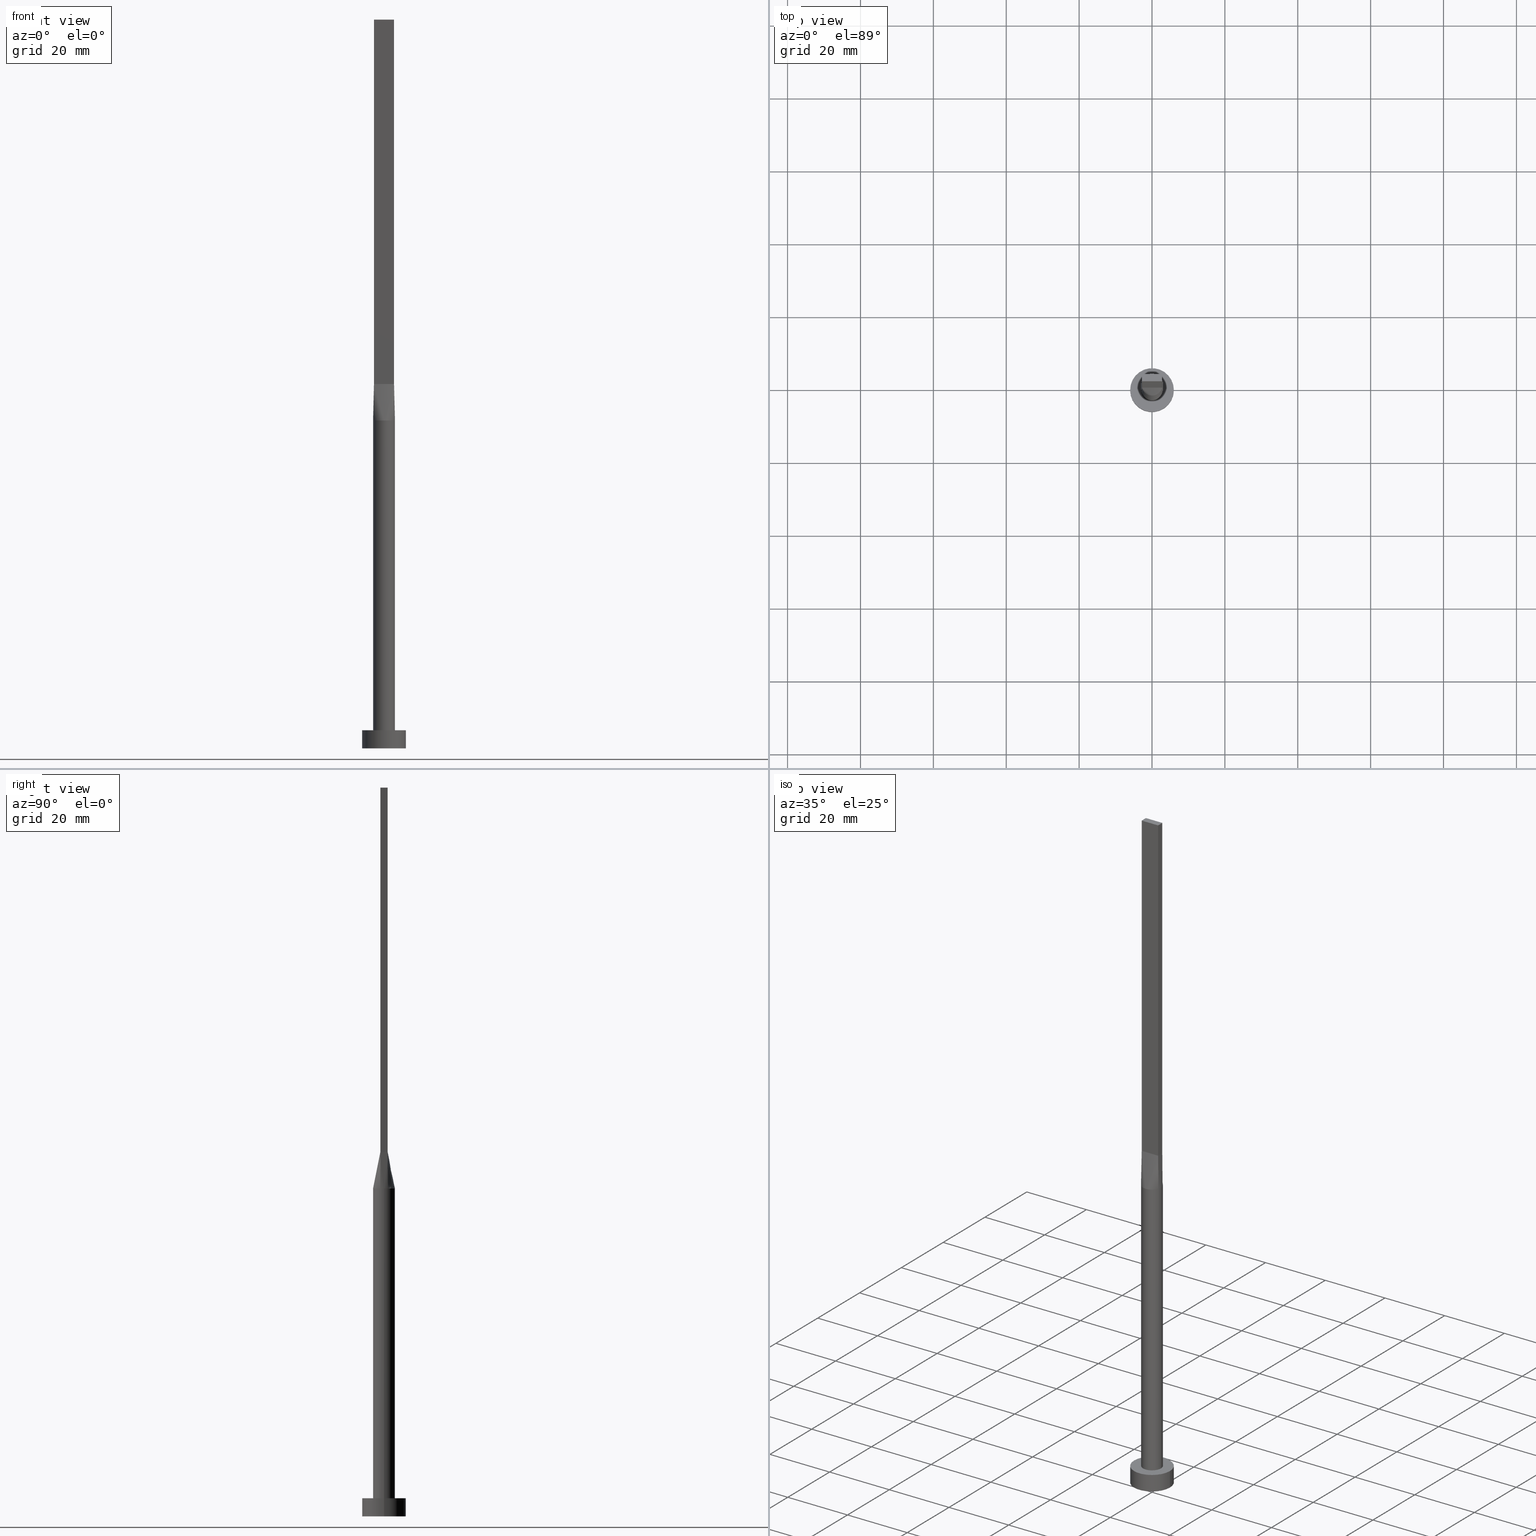
[diagram: canonical four-view strip — front | top / right | iso, engineering-drawing reading convention]
A machine part, canonical four-view strip (front | top / right | iso — engineering-drawing reading convention). The complete STEP part file that produces these views, byte-faithful:
ISO-10303-21;
HEADER;
FILE_DESCRIPTION (( 'STEP AP203' ),
    '1' );
FILE_NAME ('730e.STEP',
    '2023-02-13T10:48:29',
    ( '' ),
    ( '' ),
    'SwSTEP 2.0',
    'SolidWorks 2019',
    '' );
FILE_SCHEMA (( 'CONFIG_CONTROL_DESIGN' ));
ENDSEC;

DATA;
#1 = DIRECTION ( 'NONE',  ( 0.006937837988376413349, -0.002522850177591350138, 0.9999727504442450510 ) ) ;
#2 = CARTESIAN_POINT ( 'NONE',  ( -2.749999999999999556, 0.6666666666666668517, 100.0000000000000000 ) ) ;
#3 = EDGE_CURVE ( 'NONE', #349, #217, #318, .T. ) ;
#4 = CYLINDRICAL_SURFACE ( 'NONE', #550, 3.000000000000000444 ) ;
#5 = VERTEX_POINT ( 'NONE', #452 ) ;
#6 = CARTESIAN_POINT ( 'NONE',  ( -2.750000000000000000, -0.9999999999999993339, 200.0000000000000000 ) ) ;
#7 = ORIENTED_EDGE ( 'NONE', *, *, #246, .T. ) ;
#8 = DIRECTION ( 'NONE',  ( -0.006937837988376369981, 0.002522850177591328454, 0.9999727504442450510 ) ) ;
#9 = EDGE_CURVE ( 'NONE', #477, #407, #185, .T. ) ;
#10 = DIRECTION ( 'NONE',  ( -0.000000000000000000, -0.000000000000000000, -1.000000000000000000 ) ) ;
#11 = DIRECTION ( 'NONE',  ( 1.000000000000000000, 0.000000000000000000, 0.000000000000000000 ) ) ;
#12 = ORIENTED_EDGE ( 'NONE', *, *, #190, .T. ) ;
#13 = DIRECTION ( 'NONE',  ( -0.006937837988376369981, -0.002522850177591328454, -0.9999727504442450510 ) ) ;
#14 = CARTESIAN_POINT ( 'NONE',  ( 0.3502136323054372835, -3.000000000000000444, 90.00000000000001421 ) ) ;
#15 = PLANE ( 'NONE',  #500 ) ;
#16 = CARTESIAN_POINT ( 'NONE',  ( -2.750000000000000000, -0.6666666666666658525, 100.0000000000000000 ) ) ;
#17 = EDGE_CURVE ( 'NONE', #87, #202, #43, .T. ) ;
#18 = CARTESIAN_POINT ( 'NONE',  ( 2.314486317179579533, -1.928337902455807606, 90.00000000000002842 ) ) ;
#19 = FACE_OUTER_BOUND ( 'NONE', #534, .T. ) ;
#20 = AXIS2_PLACEMENT_3D ( 'NONE', #541, #403, #267 ) ;
#21 = APPROVAL_PERSON_ORGANIZATION ( #293, #104, #69 ) ;
#22 = CIRCLE ( 'NONE', #347, 3.000000000000000444 ) ;
#23 = CARTESIAN_POINT ( 'NONE',  ( -2.750000000000000000, -0.9999999999999991118, 100.0000000000000000 ) ) ;
#24 = PERSON_AND_ORGANIZATION_ROLE ( 'design_owner' ) ;
#25 = EDGE_CURVE ( 'NONE', #544, #258, #183, .T. ) ;
#26 = LINE ( 'NONE', #524, #389 ) ;
#27 = PRODUCT ( '730e', '730e', '', ( #203 ) ) ;
#28 = ORIENTED_EDGE ( 'NONE', *, *, #53, .T. ) ;
#29 = DATE_AND_TIME ( #468, #281 ) ;
#30 = CARTESIAN_POINT ( 'NONE',  ( -0.9166666666666644092, 1.000000000000000000, 100.0000000000000000 ) ) ;
#31 = EDGE_LOOP ( 'NONE', ( #454, #387, #487, #539 ) ) ;
#32 = CARTESIAN_POINT ( 'NONE',  ( -1.627925520694712747, 2.539128397820341831, 90.00000000000000000 ) ) ;
#33 = ORIENTED_EDGE ( 'NONE', *, *, #255, .F. ) ;
#34 = EDGE_CURVE ( 'NONE', #217, #349, #52, .T. ) ;
#35 = APPROVAL_DATE_TIME ( #162, #456 ) ;
#36 = CARTESIAN_POINT ( 'NONE',  ( -1.338960936578149408, 2.706038443291637119, 90.00000000000000000 ) ) ;
#37 = EDGE_LOOP ( 'NONE', ( #575, #210, #360, #432 ) ) ;
#38 = CARTESIAN_POINT ( 'NONE',  ( 2.314486317179579977, 1.928337902455807384, 90.00000000000002842 ) ) ;
#39 = ORIENTED_EDGE ( 'NONE', *, *, #333, .F. ) ;
#40 = CARTESIAN_POINT ( 'NONE',  ( 0.000000000000000000, 0.000000000000000000, 5.000000000000000000 ) ) ;
#41 =( GEOMETRIC_REPRESENTATION_CONTEXT ( 3 ) GLOBAL_UNCERTAINTY_ASSIGNED_CONTEXT ( ( #449 ) ) GLOBAL_UNIT_ASSIGNED_CONTEXT ( ( #406, #181, #554 ) ) REPRESENTATION_CONTEXT ( 'NONE', 'WORKASPACE' ) );
#42 = ORIENTED_EDGE ( 'NONE', *, *, #9, .T. ) ;
#43 = CIRCLE ( 'NONE', #70, 3.000000000000000444 ) ;
#44 = EDGE_CURVE ( 'NONE', #423, #552, #139, .T. ) ;
#45 = CARTESIAN_POINT ( 'NONE',  ( 2.750000000000000000, -0.9999999999999997780, 200.0000000000000000 ) ) ;
#46 = DIRECTION ( 'NONE',  ( -0.000000000000000000, -0.000000000000000000, -1.000000000000000000 ) ) ;
#47 = CARTESIAN_POINT ( 'NONE',  ( 0.000000000000000000, 0.000000000000000000, 90.00000000000001421 ) ) ;
#48 = ORIENTED_EDGE ( 'NONE', *, *, #530, .F. ) ;
#49 = CARTESIAN_POINT ( 'NONE',  ( 2.749999999999999556, 1.000000000000000000, 200.0000000000000000 ) ) ;
#50 = ORIENTED_EDGE ( 'NONE', *, *, #17, .F. ) ;
#51 = ORIENTED_EDGE ( 'NONE', *, *, #297, .T. ) ;
#52 = CIRCLE ( 'NONE', #363, 6.000000000000000888 ) ;
#53 = EDGE_CURVE ( 'NONE', #578, #266, #576, .T. ) ;
#54 = CARTESIAN_POINT ( 'NONE',  ( -2.749999999999999556, 1.000000000000000000, 100.0000000000000000 ) ) ;
#55 = CARTESIAN_POINT ( 'NONE',  ( 3.000000000000000444, 3.673940397442060361E-16, 5.000000000000000000 ) ) ;
#56 = CARTESIAN_POINT ( 'NONE',  ( 1.604166666666666741, -0.9999999999999995559, 100.0000000000000000 ) ) ;
#57 = ORIENTED_EDGE ( 'NONE', *, *, #411, .T. ) ;
#58 = CARTESIAN_POINT ( 'NONE',  ( -2.749999999999999556, 1.000000000000000000, 100.0000000000000000 ) ) ;
#59 = PLANE ( 'NONE',  #156 ) ;
#60 = CARTESIAN_POINT ( 'NONE',  ( 0.4583333333333332593, -0.9999999999999995559, 100.0000000000000000 ) ) ;
#61 = EDGE_CURVE ( 'NONE', #258, #5, #261, .T. ) ;
#62 = CARTESIAN_POINT ( 'NONE',  ( 0.000000000000000000, 0.000000000000000000, 90.00000000000001421 ) ) ;
#63 = CARTESIAN_POINT ( 'NONE',  ( -2.314486317179578645, -1.928337902455806496, 90.00000000000001421 ) ) ;
#64 = FACE_OUTER_BOUND ( 'NONE', #445, .T. ) ;
#65 = FACE_OUTER_BOUND ( 'NONE', #343, .T. ) ;
#66 = CARTESIAN_POINT ( 'NONE',  ( 0.000000000000000000, 0.000000000000000000, 0.000000000000000000 ) ) ;
#67 = VECTOR ( 'NONE', #338, 1000.000000000000000 ) ;
#68 = ADVANCED_FACE ( 'NONE', ( #438 ), #394, .T. ) ;
#69 = APPROVAL_ROLE ( '' ) ;
#70 = AXIS2_PLACEMENT_3D ( 'NONE', #225, #357, #496 ) ;
#71 = LINE ( 'NONE', #244, #67 ) ;
#72 = CALENDAR_DATE ( 2023, 13, 2 ) ;
#73 = DIRECTION ( 'NONE',  ( -0.006937837988376413349, -0.002522850177591328454, 0.9999727504442450510 ) ) ;
#74 = B_SPLINE_SURFACE_WITH_KNOTS ( 'NONE', 3, 1, ( 
 ( #410, #556 ),
 ( #100, #510 ),
 ( #418, #559 ),
 ( #63, #230 ),
 ( #283, #239 ),
 ( #322, #414 ),
 ( #105, #280 ),
 ( #109, #329 ),
 ( #460, #107 ),
 ( #14, #365 ),
 ( #319, #60 ),
 ( #237, #179 ),
 ( #325, #186 ),
 ( #502, #56 ),
 ( #18, #278 ),
 ( #457, #148 ),
 ( #361, #276 ),
 ( #191, #146 ) ),
 .UNSPECIFIED., .F., .F., .F.,
 ( 4, 2, 2, 2, 2, 2, 2, 2, 4 ),
 ( 2, 2 ),
 ( 0.000000000000000000, 0.1250000000000000000, 0.2500000000000000000, 0.3750000000000000000, 0.5000000000000000000, 0.6250000000000000000, 0.7500000000000000000, 0.8750000000000000000, 1.000000000000000000 ),
 ( 0.000000000000000000, 1.000000000000000000 ),
 .UNSPECIFIED. ) ;
#75 = ORIENTED_EDGE ( 'NONE', *, *, #333, .T. ) ;
#76 = PERSON_AND_ORGANIZATION ( #440, #491 ) ;
#77 = CARTESIAN_POINT ( 'NONE',  ( 2.819380270465311700, 1.025229189260113083, 90.00000000000001421 ) ) ;
#78 = EDGE_LOOP ( 'NONE', ( #168, #228, #323, #39 ) ) ;
#79 = CC_DESIGN_APPROVAL ( #367, ( #428 ) ) ;
#80 = COORDINATED_UNIVERSAL_TIME_OFFSET ( 1, 0, .AHEAD. ) ;
#81 = LINE ( 'NONE', #335, #308 ) ;
#82 = ORIENTED_EDGE ( 'NONE', *, *, #44, .F. ) ;
#83 = CARTESIAN_POINT ( 'NONE',  ( 2.749999999999999556, 1.000000000000000000, 200.0000000000000000 ) ) ;
#84 = ORIENTED_EDGE ( 'NONE', *, *, #275, .T. ) ;
#85 = APPLICATION_CONTEXT ( 'configuration controlled 3d designs of mechanical parts and assemblies' ) ;
#86 = CYLINDRICAL_SURFACE ( 'NONE', #193, 6.000000000000000888 ) ;
#87 = VERTEX_POINT ( 'NONE', #55 ) ;
#88 = EDGE_CURVE ( 'NONE', #202, #87, #439, .T. ) ;
#89 = CARTESIAN_POINT ( 'NONE',  ( -2.749999999999999556, 1.000000000000000000, 200.0000000000000000 ) ) ;
#90 = FACE_OUTER_BOUND ( 'NONE', #251, .T. ) ;
#91 = DIRECTION ( 'NONE',  ( -1.000000000000000000, 0.000000000000000000, 0.000000000000000000 ) ) ;
#92 = DIRECTION ( 'NONE',  ( 1.000000000000000000, 0.000000000000000000, 0.000000000000000000 ) ) ;
#93 = CARTESIAN_POINT ( 'NONE',  ( 0.000000000000000000, 0.000000000000000000, 5.000000000000000000 ) ) ;
#94 = EDGE_CURVE ( 'NONE', #266, #349, #536, .T. ) ;
#95 = DIRECTION ( 'NONE',  ( 1.000000000000000000, 0.000000000000000000, 0.000000000000000000 ) ) ;
#96 = CARTESIAN_POINT ( 'NONE',  ( 3.000000000000000444, 7.514166843208536743E-18, 90.00000000000001421 ) ) ;
#97 = AXIS2_PLACEMENT_3D ( 'NONE', #144, #412, #195 ) ;
#98 = CARTESIAN_POINT ( 'NONE',  ( 0.000000000000000000, 0.000000000000000000, 5.000000000000000000 ) ) ;
#99 = AXIS2_PLACEMENT_3D ( 'NONE', #98, #46, #321 ) ;
#100 = CARTESIAN_POINT ( 'NONE',  ( -2.739088299662391979, -1.246032108968140983, 89.99999999999998579 ) ) ;
#101 = CARTESIAN_POINT ( 'NONE',  ( 2.750000000000000000, -1.000000000000000000, 100.0000000000000000 ) ) ;
#102 = ORIENTED_EDGE ( 'NONE', *, *, #61, .F. ) ;
#103 = CARTESIAN_POINT ( 'NONE',  ( -2.749999999999999556, 1.000000000000000000, 200.0000000000000000 ) ) ;
#104 = APPROVAL ( #421, 'NEUR�EN�' ) ;
#105 = CARTESIAN_POINT ( 'NONE',  ( -1.338960936578150518, -2.706038443291638007, 90.00000000000001421 ) ) ;
#106 = DIRECTION ( 'NONE',  ( 1.000000000000000000, -7.885106708985487801E-17, 0.000000000000000000 ) ) ;
#107 = CARTESIAN_POINT ( 'NONE',  ( -0.2291666666666667684, -0.9999999999999995559, 100.0000000000000142 ) ) ;
#108 = LINE ( 'NONE', #147, #520 ) ;
#109 = CARTESIAN_POINT ( 'NONE',  ( -0.6998073349918614294, -2.936959335800558346, 90.00000000000001421 ) ) ;
#110 = DIRECTION ( 'NONE',  ( 1.000000000000000000, 0.000000000000000000, -0.000000000000000000 ) ) ;
#111 = ADVANCED_FACE ( 'NONE', ( #581 ), #260, .F. ) ;
#112 = CALENDAR_DATE ( 2023, 13, 2 ) ;
#113 = CARTESIAN_POINT ( 'NONE',  ( 2.314486317179579977, 1.928337902455807384, 90.00000000000002842 ) ) ;
#114 = CIRCLE ( 'NONE', #391, 6.000000000000000888 ) ;
#115 = PERSON_AND_ORGANIZATION_ROLE ( 'classification_officer' ) ;
#116 = VECTOR ( 'NONE', #8, 1000.000000000000114 ) ;
#117 = CARTESIAN_POINT ( 'NONE',  ( -2.115507543051069916, 2.149870311632977593, 90.00000000000001421 ) ) ;
#118 = CARTESIAN_POINT ( 'NONE',  ( 2.115507543051069916, 2.149870311632976705, 90.00000000000001421 ) ) ;
#119 = ORIENTED_EDGE ( 'NONE', *, *, #17, .T. ) ;
#120 = DIRECTION ( 'NONE',  ( 1.000000000000000000, 0.000000000000000000, 0.000000000000000000 ) ) ;
#121 = ADVANCED_FACE ( 'NONE', ( #90 ), #485, .T. ) ;
#122 = CARTESIAN_POINT ( 'NONE',  ( 0.2291666666666679342, 1.000000000000000000, 100.0000000000000142 ) ) ;
#123 = ORIENTED_EDGE ( 'NONE', *, *, #255, .T. ) ;
#124 = VECTOR ( 'NONE', #279, 1000.000000000000000 ) ;
#125 = CARTESIAN_POINT ( 'NONE',  ( -2.115507543051069916, 2.149870311632977593, 90.00000000000001421 ) ) ;
#126 = ORIENTED_EDGE ( 'NONE', *, *, #297, .F. ) ;
#127 = DIRECTION ( 'NONE',  ( -0.000000000000000000, -0.000000000000000000, -1.000000000000000000 ) ) ;
#128 = ORIENTED_EDGE ( 'NONE', *, *, #464, .T. ) ;
#129 = ADVANCED_FACE ( 'NONE', ( #326 ), #59, .F. ) ;
#130 = CARTESIAN_POINT ( 'NONE',  ( -2.314486317179579977, 1.928337902455808051, 90.00000000000001421 ) ) ;
#131 = DIRECTION ( 'NONE',  ( 2.168404344971010101E-16, 1.000000000000000000, 0.000000000000000000 ) ) ;
#132 = CARTESIAN_POINT ( 'NONE',  ( 2.749999999999999556, 1.000000000000000000, 200.0000000000000000 ) ) ;
#133 = CARTESIAN_POINT ( 'NONE',  ( -6.000000000000000888, 0.000000000000000000, 5.000000000000000000 ) ) ;
#134 = MANIFOLD_SOLID_BREP ( 'P�idat vysunut�m5', #579 ) ;
#135 = ADVANCED_FACE ( 'NONE', ( #562 ), #508, .F. ) ;
#136 = LINE ( 'NONE', #45, #467 ) ;
#137 = ORIENTED_EDGE ( 'NONE', *, *, #201, .F. ) ;
#138 = CARTESIAN_POINT ( 'NONE',  ( 3.000000000000000444, 3.673940397442060361E-16, 90.00000000000001421 ) ) ;
#139 = LINE ( 'NONE', #448, #116 ) ;
#140 = CARTESIAN_POINT ( 'NONE',  ( -2.819429393986302657, 1.025247261300842760, 90.00000000000001421 ) ) ;
#141 = VECTOR ( 'NONE', #219, 1000.000000000000000 ) ;
#142 = CARTESIAN_POINT ( 'NONE',  ( 0.000000000000000000, 0.000000000000000000, 90.00000000000001421 ) ) ;
#143 = ORIENTED_EDGE ( 'NONE', *, *, #416, .F. ) ;
#144 = CARTESIAN_POINT ( 'NONE',  ( 0.000000000000000000, 0.000000000000000000, 90.00000000000001421 ) ) ;
#145 = ADVANCED_FACE ( 'NONE', ( #19 ), #277, .F. ) ;
#146 = CARTESIAN_POINT ( 'NONE',  ( 2.750000000000000000, -0.9999999999999997780, 100.0000000000000000 ) ) ;
#147 = CARTESIAN_POINT ( 'NONE',  ( -2.784690135232656072, -1.012614594630055764, 95.00000000000000000 ) ) ;
#148 = CARTESIAN_POINT ( 'NONE',  ( 2.291666666666666519, -0.9999999999999995559, 100.0000000000000000 ) ) ;
#149 = LINE ( 'NONE', #103, #124 ) ;
#150 = EDGE_CURVE ( 'NONE', #346, #571, #413, .T. ) ;
#151 = FACE_OUTER_BOUND ( 'NONE', #222, .T. ) ;
#152 = DIRECTION ( 'NONE',  ( 0.000000000000000000, -1.000000000000000000, 0.000000000000000000 ) ) ;
#153 = PERSON_AND_ORGANIZATION ( #440, #491 ) ;
#154 = CARTESIAN_POINT ( 'NONE',  ( 2.291666666666666963, 1.000000000000000000, 100.0000000000000000 ) ) ;
#155 = ORIENTED_EDGE ( 'NONE', *, *, #150, .T. ) ;
#156 = AXIS2_PLACEMENT_3D ( 'NONE', #66, #240, #110 ) ;
#157 = PERSON_AND_ORGANIZATION ( #440, #491 ) ;
#158 = CARTESIAN_POINT ( 'NONE',  ( 1.338960936578149630, 2.706038443291637563, 90.00000000000000000 ) ) ;
#159 = ORIENTED_EDGE ( 'NONE', *, *, #522, .T. ) ;
#160 = DIRECTION ( 'NONE',  ( 0.000000000000000000, 0.000000000000000000, 1.000000000000000000 ) ) ;
#161 = ORIENTED_EDGE ( 'NONE', *, *, #275, .F. ) ;
#162 = DATE_AND_TIME ( #112, #232 ) ;
#163 = DIRECTION ( 'NONE',  ( -0.000000000000000000, -0.000000000000000000, -1.000000000000000000 ) ) ;
#164 = VECTOR ( 'NONE', #106, 1000.000000000000000 ) ;
#165 = AXIS2_PLACEMENT_3D ( 'NONE', #442, #180, #499 ) ;
#166 = ADVANCED_FACE ( 'NONE', ( #64 ), #287, .T. ) ;
#167 = CARTESIAN_POINT ( 'NONE',  ( 1.833333333333334370, 1.000000000000000000, 100.0000000000000000 ) ) ;
#168 = ORIENTED_EDGE ( 'NONE', *, *, #309, .T. ) ;
#169 = DIRECTION ( 'NONE',  ( 1.000000000000000000, 0.000000000000000000, -0.000000000000000000 ) ) ;
#170 = DIRECTION ( 'NONE',  ( 1.000000000000000000, -2.168404344971010101E-16, 0.000000000000000000 ) ) ;
#171 = DIRECTION ( 'NONE',  ( 0.000000000000000000, 0.000000000000000000, 1.000000000000000000 ) ) ;
#172 = CARTESIAN_POINT ( 'NONE',  ( -3.000000000000000444, 0.3523499553598127276, 90.00000000000001421 ) ) ;
#173 = CARTESIAN_POINT ( 'NONE',  ( -2.739088299662392423, 1.246032108968142316, 90.00000000000002842 ) ) ;
#174 = ORIENTED_EDGE ( 'NONE', *, *, #373, .T. ) ;
#175 = VERTEX_POINT ( 'NONE', #561 ) ;
#176 = DIRECTION ( 'NONE',  ( -0.000000000000000000, -0.000000000000000000, -1.000000000000000000 ) ) ;
#177 = EDGE_LOOP ( 'NONE', ( #48, #143, #299, #498 ) ) ;
#178 = ORIENTED_EDGE ( 'NONE', *, *, #358, .F. ) ;
#179 = CARTESIAN_POINT ( 'NONE',  ( 0.9166666666666665186, -0.9999999999999995559, 100.0000000000000000 ) ) ;
#180 = DIRECTION ( 'NONE',  ( 0.000000000000000000, 0.000000000000000000, 1.000000000000000000 ) ) ;
#181 =( NAMED_UNIT ( * ) PLANE_ANGLE_UNIT ( ) SI_UNIT ( $, .RADIAN. ) );
#182 = ORIENTED_EDGE ( 'NONE', *, *, #383, .F. ) ;
#183 = CIRCLE ( 'NONE', #20, 3.000000000000000444 ) ;
#184 = CARTESIAN_POINT ( 'NONE',  ( -3.000000000000000444, -0.3523499553598117839, 90.00000000000001421 ) ) ;
#185 = CIRCLE ( 'NONE', #517, 3.000000000000000444 ) ;
#186 = CARTESIAN_POINT ( 'NONE',  ( 1.145833333333333259, -0.9999999999999995559, 100.0000000000000000 ) ) ;
#187 = CARTESIAN_POINT ( 'NONE',  ( 2.750000000000000000, -0.3333333333333333148, 100.0000000000000000 ) ) ;
#188 = APPLICATION_PROTOCOL_DEFINITION ( 'international standard', 'config_control_design', 1994, #288 ) ;
#189 = CARTESIAN_POINT ( 'NONE',  ( 3.000000000000000444, -0.3523499553598126721, 90.00000000000001421 ) ) ;
#190 = EDGE_CURVE ( 'NONE', #292, #175, #332, .T. ) ;
#191 = CARTESIAN_POINT ( 'NONE',  ( 2.819380270465311700, -1.025229189260112417, 90.00000000000001421 ) ) ;
#192 = CARTESIAN_POINT ( 'NONE',  ( 2.749999999999999556, 0.3333333333333333148, 100.0000000000000000 ) ) ;
#193 = AXIS2_PLACEMENT_3D ( 'NONE', #259, #10, #359 ) ;
#194 = COORDINATED_UNIVERSAL_TIME_OFFSET ( 1, 0, .AHEAD. ) ;
#195 = DIRECTION ( 'NONE',  ( -1.000000000000000000, 0.000000000000000000, 0.000000000000000000 ) ) ;
#196 = CALENDAR_DATE ( 2023, 13, 2 ) ;
#197 = CARTESIAN_POINT ( 'NONE',  ( 2.749999999999999556, 1.000000000000000000, 100.0000000000000000 ) ) ;
#198 = ORIENTED_EDGE ( 'NONE', *, *, #494, .T. ) ;
#199 = CALENDAR_DATE ( 2023, 13, 2 ) ;
#200 = DIRECTION ( 'NONE',  ( 1.000000000000000000, 0.000000000000000000, 0.000000000000000000 ) ) ;
#201 = EDGE_CURVE ( 'NONE', #473, #5, #108, .T. ) ;
#202 = VERTEX_POINT ( 'NONE', #553 ) ;
#203 = MECHANICAL_CONTEXT ( 'NONE', #288, 'mechanical' ) ;
#204 = CARTESIAN_POINT ( 'NONE',  ( 1.338960936578149630, 2.706038443291637563, 90.00000000000000000 ) ) ;
#205 = EDGE_LOOP ( 'NONE', ( #274, #28 ) ) ;
#206 = CARTESIAN_POINT ( 'NONE',  ( 1.604166666666668073, 1.000000000000000000, 100.0000000000000000 ) ) ;
#207 = ORIENTED_EDGE ( 'NONE', *, *, #464, .F. ) ;
#208 = ADVANCED_FACE ( 'NONE', ( #151 ), #364, .T. ) ;
#209 = CARTESIAN_POINT ( 'NONE',  ( 1.627925520694712080, 2.539128397820340943, 90.00000000000001421 ) ) ;
#210 = ORIENTED_EDGE ( 'NONE', *, *, #530, .T. ) ;
#211 = AXIS2_PLACEMENT_3D ( 'NONE', #506, #152, #235 ) ;
#212 = PRODUCT_DEFINITION_SHAPE ( 'NONE', 'NONE',  #428 ) ;
#213 = VECTOR ( 'NONE', #306, 1000.000000000000000 ) ;
#214 = DIRECTION ( 'NONE',  ( 1.000000000000000000, 0.000000000000000000, 0.000000000000000000 ) ) ;
#215 = CARTESIAN_POINT ( 'NONE',  ( -2.749999999999999556, 1.000000000000000000, 200.0000000000000000 ) ) ;
#216 = FACE_BOUND ( 'NONE', #382, .T. ) ;
#217 = VERTEX_POINT ( 'NONE', #324 ) ;
#218 = CARTESIAN_POINT ( 'NONE',  ( -2.749999999999999556, 1.000000000000000000, 100.0000000000000000 ) ) ;
#219 = DIRECTION ( 'NONE',  ( -2.168404344971009854E-16, -1.000000000000000000, 0.000000000000000000 ) ) ;
#220 = ORIENTED_EDGE ( 'NONE', *, *, #383, .T. ) ;
#221 = CARTESIAN_POINT ( 'NONE',  ( -2.291666666666665186, 1.000000000000000000, 100.0000000000000000 ) ) ;
#222 = EDGE_LOOP ( 'NONE', ( #303, #128, #119, #182, #390, #483 ) ) ;
#223 = DIRECTION ( 'NONE',  ( 0.000000000000000000, 0.000000000000000000, 1.000000000000000000 ) ) ;
#224 = DIRECTION ( 'NONE',  ( -0.000000000000000000, -0.000000000000000000, -1.000000000000000000 ) ) ;
#225 = CARTESIAN_POINT ( 'NONE',  ( 0.000000000000000000, 0.000000000000000000, 5.000000000000000000 ) ) ;
#226 = EDGE_CURVE ( 'NONE', #480, #571, #149, .T. ) ;
#227 = DIRECTION ( 'NONE',  ( 7.885106708985487801E-17, 1.000000000000000000, -0.000000000000000000 ) ) ;
#228 = ORIENTED_EDGE ( 'NONE', *, *, #484, .T. ) ;
#229 = CARTESIAN_POINT ( 'NONE',  ( 2.819380270465311700, -1.025229189260113083, 90.00000000000001421 ) ) ;
#230 = CARTESIAN_POINT ( 'NONE',  ( -1.833333333333333037, -0.9999999999999995559, 100.0000000000000000 ) ) ;
#231 = AXIS2_PLACEMENT_3D ( 'NONE', #62, #160, #200 ) ;
#232 = LOCAL_TIME ( 11, 48, 29.00000000000000000, #526 ) ;
#233 = CARTESIAN_POINT ( 'NONE',  ( 2.750000000000000000, -0.9999999999999997780, 200.0000000000000000 ) ) ;
#234 = DIRECTION ( 'NONE',  ( -1.000000000000000000, 7.885106708985487801E-17, 0.000000000000000000 ) ) ;
#235 = DIRECTION ( 'NONE',  ( 0.000000000000000000, -0.000000000000000000, -1.000000000000000000 ) ) ;
#236 = ADVANCED_FACE ( 'NONE', ( #284 ), #15, .T. ) ;
#237 = CARTESIAN_POINT ( 'NONE',  ( 1.338960936578149630, -2.706038443291638007, 90.00000000000002842 ) ) ;
#238 = CARTESIAN_POINT ( 'NONE',  ( 3.000000000000000444, 0.3523499553598119505, 90.00000000000001421 ) ) ;
#239 = CARTESIAN_POINT ( 'NONE',  ( -1.604166666666666519, -0.9999999999999995559, 100.0000000000000000 ) ) ;
#240 = DIRECTION ( 'NONE',  ( 0.000000000000000000, 0.000000000000000000, 1.000000000000000000 ) ) ;
#241 = AXIS2_PLACEMENT_3D ( 'NONE', #317, #351, #11 ) ;
#242 = VECTOR ( 'NONE', #507, 1000.000000000000000 ) ;
#243 = DIRECTION ( 'NONE',  ( 0.000000000000000000, 0.000000000000000000, 1.000000000000000000 ) ) ;
#244 = CARTESIAN_POINT ( 'NONE',  ( 2.749999999999999556, 1.000000000000000000, 100.0000000000000000 ) ) ;
#245 = PERSON_AND_ORGANIZATION ( #440, #491 ) ;
#246 = EDGE_CURVE ( 'NONE', #473, #552, #282, .T. ) ;
#247 = CARTESIAN_POINT ( 'NONE',  ( 0.6998073349918605413, 2.936959335800557014, 89.99999999999997158 ) ) ;
#248 = ORIENTED_EDGE ( 'NONE', *, *, #34, .F. ) ;
#249 = APPROVAL_STATUS ( 'not_yet_approved' ) ;
#250 = CARTESIAN_POINT ( 'NONE',  ( 2.625980160873452540, 1.476334031700886618, 90.00000000000001421 ) ) ;
#251 = EDGE_LOOP ( 'NONE', ( #254, #425, #137, #178, #398 ) ) ;
#252 = CC_DESIGN_APPROVAL ( #456, ( #337 ) ) ;
#253 = CARTESIAN_POINT ( 'NONE',  ( -0.4583333333333315385, 1.000000000000000000, 100.0000000000000000 ) ) ;
#254 = ORIENTED_EDGE ( 'NONE', *, *, #25, .T. ) ;
#255 = EDGE_CURVE ( 'NONE', #5, #423, #489, .T. ) ;
#256 = PERSON_AND_ORGANIZATION ( #440, #491 ) ;
#257 = CARTESIAN_POINT ( 'NONE',  ( 2.625980160873452540, 1.476334031700886618, 90.00000000000001421 ) ) ;
#258 = VERTEX_POINT ( 'NONE', #286 ) ;
#259 = CARTESIAN_POINT ( 'NONE',  ( 0.000000000000000000, 0.000000000000000000, 5.000000000000000000 ) ) ;
#260 = PLANE ( 'NONE',  #345 ) ;
#261 = CIRCLE ( 'NONE', #165, 3.000000000000000444 ) ;
#262 = APPROVAL_PERSON_ORGANIZATION ( #478, #367, #301 ) ;
#263 = LINE ( 'NONE', #395, #379 ) ;
#264 = CARTESIAN_POINT ( 'NONE',  ( -2.819380270465311700, 1.025229189260112861, 90.00000000000001421 ) ) ;
#265 = DIRECTION ( 'NONE',  ( 0.000000000000000000, 0.000000000000000000, 1.000000000000000000 ) ) ;
#266 = VERTEX_POINT ( 'NONE', #302 ) ;
#267 = DIRECTION ( 'NONE',  ( 1.000000000000000000, 0.000000000000000000, 0.000000000000000000 ) ) ;
#268 = DIRECTION ( 'NONE',  ( 0.000000000000000000, 0.000000000000000000, 1.000000000000000000 ) ) ;
#269 = EDGE_LOOP ( 'NONE', ( #569, #248 ) ) ;
#270 = DIRECTION ( 'NONE',  ( 1.000000000000000000, 0.000000000000000000, 0.000000000000000000 ) ) ;
#271 = AXIS2_PLACEMENT_3D ( 'NONE', #233, #330, #455 ) ;
#272 = DIRECTION ( 'NONE',  ( 1.000000000000000000, 8.881784197001252323E-16, 0.000000000000000000 ) ) ;
#273 = VECTOR ( 'NONE', #91, 1000.000000000000000 ) ;
#274 = ORIENTED_EDGE ( 'NONE', *, *, #416, .T. ) ;
#275 = EDGE_CURVE ( 'NONE', #175, #552, #81, .T. ) ;
#276 = CARTESIAN_POINT ( 'NONE',  ( 2.520833333333333037, -0.9999999999999995559, 100.0000000000000000 ) ) ;
#277 = PLANE ( 'NONE',  #271 ) ;
#278 = CARTESIAN_POINT ( 'NONE',  ( 1.833333333333333481, -0.9999999999999995559, 100.0000000000000000 ) ) ;
#279 = DIRECTION ( 'NONE',  ( -0.000000000000000000, -0.000000000000000000, -1.000000000000000000 ) ) ;
#280 = CARTESIAN_POINT ( 'NONE',  ( -0.9166666666666666297, -0.9999999999999995559, 100.0000000000000142 ) ) ;
#281 = LOCAL_TIME ( 11, 48, 29.00000000000000000, #194 ) ;
#282 = LINE ( 'NONE', #463, #450 ) ;
#283 = CARTESIAN_POINT ( 'NONE',  ( -2.115507543051069472, -2.149870311632975373, 90.00000000000000000 ) ) ;
#284 = FACE_OUTER_BOUND ( 'NONE', #305, .T. ) ;
#285 = CARTESIAN_POINT ( 'NONE',  ( 2.936168591633195657, 0.7040613060484338659, 90.00000000000002842 ) ) ;
#286 = CARTESIAN_POINT ( 'NONE',  ( -3.000000000000000444, -1.370010780910363192E-16, 90.00000000000001421 ) ) ;
#287 = B_SPLINE_SURFACE_WITH_KNOTS ( 'NONE', 3, 1, ( 
 ( #229, #101 ),
 ( #374, #408 ),
 ( #189, #187 ),
 ( #238, #192 ),
 ( #285, #370 ),
 ( #512, #557 ) ),
 .UNSPECIFIED., .F., .F., .F.,
 ( 4, 2, 4 ),
 ( 2, 2 ),
 ( 0.000000000000000000, 0.5000000000000000000, 1.000000000000000000 ),
 ( 0.000000000000000000, 1.000000000000000000 ),
 .UNSPECIFIED. ) ;
#288 = APPLICATION_CONTEXT ( 'configuration controlled 3d designs of mechanical parts and assemblies' ) ;
#289 = CC_DESIGN_PERSON_AND_ORGANIZATION_ASSIGNMENT ( #334, #115, ( #337 ) ) ;
#290 = APPROVAL_DATE_TIME ( #29, #367 ) ;
#291 = CARTESIAN_POINT ( 'NONE',  ( -0.3502136323054376721, 2.999999999999999112, 90.00000000000002842 ) ) ;
#292 = VERTEX_POINT ( 'NONE', #422 ) ;
#293 = PERSON_AND_ORGANIZATION ( #440, #491 ) ;
#294 = CARTESIAN_POINT ( 'NONE',  ( 2.520833333333333037, 1.000000000000000000, 100.0000000000000000 ) ) ;
#295 = ORIENTED_EDGE ( 'NONE', *, *, #88, .F. ) ;
#296 = APPLICATION_PROTOCOL_DEFINITION ( 'international standard', 'config_control_design', 1994, #85 ) ;
#297 = EDGE_CURVE ( 'NONE', #402, #346, #427, .T. ) ;
#298 = CARTESIAN_POINT ( 'NONE',  ( -0.3502136323054376721, 2.999999999999999112, 90.00000000000002842 ) ) ;
#299 = ORIENTED_EDGE ( 'NONE', *, *, #94, .T. ) ;
#300 = AXIS2_PLACEMENT_3D ( 'NONE', #375, #243, #120 ) ;
#301 = APPROVAL_ROLE ( '' ) ;
#302 = CARTESIAN_POINT ( 'NONE',  ( -6.000000000000000888, 0.000000000000000000, 5.000000000000000000 ) ) ;
#303 = ORIENTED_EDGE ( 'NONE', *, *, #9, .F. ) ;
#304 = CARTESIAN_POINT ( 'NONE',  ( -1.833333333333331261, 1.000000000000000000, 100.0000000000000000 ) ) ;
#305 = EDGE_LOOP ( 'NONE', ( #198, #57, #12, #174 ) ) ;
#306 = DIRECTION ( 'NONE',  ( -0.000000000000000000, -0.000000000000000000, -1.000000000000000000 ) ) ;
#307 = DIRECTION ( 'NONE',  ( 0.000000000000000000, 0.000000000000000000, 1.000000000000000000 ) ) ;
#308 = VECTOR ( 'NONE', #163, 1000.000000000000000 ) ;
#309 = EDGE_CURVE ( 'NONE', #407, #544, #509, .T. ) ;
#310 = LOCAL_TIME ( 11, 48, 29.00000000000000000, #80 ) ;
#311 = FACE_OUTER_BOUND ( 'NONE', #532, .T. ) ;
#312 = ORIENTED_EDGE ( 'NONE', *, *, #246, .F. ) ;
#313 = CARTESIAN_POINT ( 'NONE',  ( -2.625980160873452096, 1.476334031700886396, 90.00000000000001421 ) ) ;
#314 = CARTESIAN_POINT ( 'NONE',  ( 0.000000000000000000, 0.000000000000000000, 0.000000000000000000 ) ) ;
#315 = CARTESIAN_POINT ( 'NONE',  ( 0.000000000000000000, 0.000000000000000000, 90.00000000000001421 ) ) ;
#316 = EDGE_CURVE ( 'NONE', #552, #346, #71, .T. ) ;
#317 = CARTESIAN_POINT ( 'NONE',  ( 0.000000000000000000, 0.000000000000000000, 5.000000000000000000 ) ) ;
#318 = CIRCLE ( 'NONE', #566, 6.000000000000000888 ) ;
#319 = CARTESIAN_POINT ( 'NONE',  ( 0.6998073349918603192, -2.936959335800557902, 90.00000000000001421 ) ) ;
#320 = AXIS2_PLACEMENT_3D ( 'NONE', #453, #227, #234 ) ;
#321 = DIRECTION ( 'NONE',  ( -1.000000000000000000, 0.000000000000000000, 0.000000000000000000 ) ) ;
#322 = CARTESIAN_POINT ( 'NONE',  ( -1.627925520694712525, -2.539128397820340055, 89.99999999999997158 ) ) ;
#323 = ORIENTED_EDGE ( 'NONE', *, *, #150, .F. ) ;
#324 = CARTESIAN_POINT ( 'NONE',  ( 6.000000000000000888, 7.347880794884120722E-16, 0.000000000000000000 ) ) ;
#325 = CARTESIAN_POINT ( 'NONE',  ( 1.627925520694712080, -2.539128397820341831, 90.00000000000000000 ) ) ;
#326 = FACE_OUTER_BOUND ( 'NONE', #269, .T. ) ;
#327 = CC_DESIGN_PERSON_AND_ORGANIZATION_ASSIGNMENT ( #153, #331, ( #400 ) ) ;
#328 = CARTESIAN_POINT ( 'NONE',  ( -2.749999999999999556, 0.3333333333333337034, 100.0000000000000000 ) ) ;
#329 = CARTESIAN_POINT ( 'NONE',  ( -0.4583333333333333703, -0.9999999999999995559, 100.0000000000000142 ) ) ;
#330 = DIRECTION ( 'NONE',  ( -1.000000000000000000, -2.168404344971008868E-16, 0.000000000000000000 ) ) ;
#331 = PERSON_AND_ORGANIZATION_ROLE ( 'design_supplier' ) ;
#332 = LINE ( 'NONE', #466, #164 ) ;
#333 = EDGE_CURVE ( 'NONE', #407, #346, #26, .T. ) ;
#334 = PERSON_AND_ORGANIZATION ( #440, #491 ) ;
#335 = CARTESIAN_POINT ( 'NONE',  ( 2.750000000000000000, -0.9999999999999997780, 200.0000000000000000 ) ) ;
#336 = VECTOR ( 'NONE', #378, 1000.000000000000000 ) ;
#337 = SECURITY_CLASSIFICATION ( '', '', #384 ) ;
#338 = DIRECTION ( 'NONE',  ( -2.168404344971008868E-16, 1.000000000000000000, -0.000000000000000000 ) ) ;
#339 = ORIENTED_EDGE ( 'NONE', *, *, #511, .T. ) ;
#340 = ADVANCED_FACE ( 'NONE', ( #482 ), #385, .T. ) ;
#341 = APPROVAL_STATUS ( 'not_yet_approved' ) ;
#342 = CARTESIAN_POINT ( 'NONE',  ( -2.739088299662392423, 1.246032108968142316, 90.00000000000002842 ) ) ;
#343 = EDGE_LOOP ( 'NONE', ( #123, #505, #312, #377 ) ) ;
#344 = CARTESIAN_POINT ( 'NONE',  ( 1.627925520694712080, 2.539128397820340943, 90.00000000000001421 ) ) ;
#345 = AXIS2_PLACEMENT_3D ( 'NONE', #215, #170, #131 ) ;
#346 = VERTEX_POINT ( 'NONE', #543 ) ;
#347 = AXIS2_PLACEMENT_3D ( 'NONE', #47, #265, #272 ) ;
#348 = LINE ( 'NONE', #443, #213 ) ;
#349 = VERTEX_POINT ( 'NONE', #538 ) ;
#350 = CARTESIAN_POINT ( 'NONE',  ( -2.750000000000000000, -0.9999999999999993339, 100.0000000000000000 ) ) ;
#351 = DIRECTION ( 'NONE',  ( 0.000000000000000000, 0.000000000000000000, 1.000000000000000000 ) ) ;
#352 = CC_DESIGN_PERSON_AND_ORGANIZATION_ASSIGNMENT ( #157, #563, ( #400 ) ) ;
#353 = LINE ( 'NONE', #132, #273 ) ;
#354 = CARTESIAN_POINT ( 'NONE',  ( 0.000000000000000000, 0.000000000000000000, 0.000000000000000000 ) ) ;
#355 = CARTESIAN_POINT ( 'NONE',  ( -2.819380270465311700, 1.025229189260112861, 90.00000000000001421 ) ) ;
#356 = ORIENTED_EDGE ( 'NONE', *, *, #88, .T. ) ;
#357 = DIRECTION ( 'NONE',  ( 0.000000000000000000, 0.000000000000000000, 1.000000000000000000 ) ) ;
#358 = EDGE_CURVE ( 'NONE', #571, #473, #497, .T. ) ;
#359 = DIRECTION ( 'NONE',  ( -1.000000000000000000, 0.000000000000000000, 0.000000000000000000 ) ) ;
#360 = ORIENTED_EDGE ( 'NONE', *, *, #34, .T. ) ;
#361 = CARTESIAN_POINT ( 'NONE',  ( 2.739088299662391979, -1.246032108968142982, 90.00000000000001421 ) ) ;
#362 = DIRECTION ( 'NONE',  ( 0.000000000000000000, 0.000000000000000000, 1.000000000000000000 ) ) ;
#363 = AXIS2_PLACEMENT_3D ( 'NONE', #314, #307, #95 ) ;
#364 = CYLINDRICAL_SURFACE ( 'NONE', #97, 3.000000000000000444 ) ;
#365 = CARTESIAN_POINT ( 'NONE',  ( 0.2291666666666665464, -0.9999999999999995559, 100.0000000000000142 ) ) ;
#366 = DIRECTION ( 'NONE',  ( 0.000000000000000000, 0.000000000000000000, 1.000000000000000000 ) ) ;
#367 = APPROVAL ( #341, 'NEUR�EN�' ) ;
#368 = DIRECTION ( 'NONE',  ( -1.000000000000000000, -0.000000000000000000, -0.000000000000000000 ) ) ;
#369 = PLANE ( 'NONE',  #320 ) ;
#370 = CARTESIAN_POINT ( 'NONE',  ( 2.749999999999999556, 0.6666666666666666297, 100.0000000000000000 ) ) ;
#371 = VECTOR ( 'NONE', #368, 1000.000000000000000 ) ;
#372 = COORDINATED_UNIVERSAL_TIME_OFFSET ( 1, 0, .AHEAD. ) ;
#373 = EDGE_CURVE ( 'NONE', #175, #402, #136, .T. ) ;
#374 = CARTESIAN_POINT ( 'NONE',  ( 2.936168591633194769, -0.7040613060484341990, 89.99999999999998579 ) ) ;
#375 = CARTESIAN_POINT ( 'NONE',  ( 0.000000000000000000, 0.000000000000000000, 0.000000000000000000 ) ) ;
#376 = CARTESIAN_POINT ( 'NONE',  ( 2.739088299662392867, 1.246032108968142538, 90.00000000000002842 ) ) ;
#377 = ORIENTED_EDGE ( 'NONE', *, *, #201, .T. ) ;
#378 = DIRECTION ( 'NONE',  ( -0.000000000000000000, -0.000000000000000000, -1.000000000000000000 ) ) ;
#379 = VECTOR ( 'NONE', #1, 1000.000000000000114 ) ;
#380 = ORIENTED_EDGE ( 'NONE', *, *, #316, .T. ) ;
#381 = CARTESIAN_POINT ( 'NONE',  ( 2.739088299662392867, 1.246032108968142538, 90.00000000000002842 ) ) ;
#382 = EDGE_LOOP ( 'NONE', ( #295, #50 ) ) ;
#383 = EDGE_CURVE ( 'NONE', #258, #202, #348, .T. ) ;
#384 = SECURITY_CLASSIFICATION_LEVEL ( 'unclassified' ) ;
#385 = B_SPLINE_SURFACE_WITH_KNOTS ( 'NONE', 3, 1, ( 
 ( #77, #197 ),
 ( #381, #294 ),
 ( #250, #154 ),
 ( #38, #167 ),
 ( #476, #206 ),
 ( #344, #531 ),
 ( #204, #527 ),
 ( #247, #431 ),
 ( #516, #122 ),
 ( #298, #424 ),
 ( #479, #253 ),
 ( #36, #30 ),
 ( #386, #574 ),
 ( #125, #388 ),
 ( #130, #304 ),
 ( #313, #221 ),
 ( #173, #441 ),
 ( #355, #533 ) ),
 .UNSPECIFIED., .F., .F., .F.,
 ( 4, 2, 2, 2, 2, 2, 2, 2, 4 ),
 ( 2, 2 ),
 ( 0.000000000000000000, 0.1249999999999998890, 0.2499999999999997780, 0.3749999999999997780, 0.4999999999999997780, 0.6249999999999997780, 0.7499999999999997780, 0.8749999999999998890, 1.000000000000000000 ),
 ( 0.000000000000000000, 1.000000000000000000 ),
 .UNSPECIFIED. ) ;
#386 = CARTESIAN_POINT ( 'NONE',  ( -1.627925520694712747, 2.539128397820341831, 90.00000000000000000 ) ) ;
#387 = ORIENTED_EDGE ( 'NONE', *, *, #522, .F. ) ;
#388 = CARTESIAN_POINT ( 'NONE',  ( -1.604166666666664520, 1.000000000000000000, 100.0000000000000000 ) ) ;
#389 = VECTOR ( 'NONE', #73, 1000.000000000000114 ) ;
#390 = ORIENTED_EDGE ( 'NONE', *, *, #25, .F. ) ;
#391 = AXIS2_PLACEMENT_3D ( 'NONE', #40, #268, #214 ) ;
#392 = ADVANCED_FACE ( 'NONE', ( #311 ), #4, .T. ) ;
#393 = PLANE ( 'NONE',  #551 ) ;
#394 = CYLINDRICAL_SURFACE ( 'NONE', #99, 6.000000000000000888 ) ;
#395 = CARTESIAN_POINT ( 'NONE',  ( -2.784690135232655628, 1.012614594630056430, 95.00000000000000000 ) ) ;
#396 = CARTESIAN_POINT ( 'NONE',  ( -2.936168591633194769, 0.7040613060484341990, 89.99999999999998579 ) ) ;
#397 = CARTESIAN_POINT ( 'NONE',  ( -2.749999999999999556, 1.000000000000000000, 200.0000000000000000 ) ) ;
#398 = ORIENTED_EDGE ( 'NONE', *, *, #484, .F. ) ;
#399 = ADVANCED_FACE ( 'NONE', ( #492 ), #86, .T. ) ;
#400 = PRODUCT_DEFINITION_FORMATION_WITH_SPECIFIED_SOURCE ( 'LIBOVOLN�', '', #27, .NOT_KNOWN. ) ;
#401 = LINE ( 'NONE', #6, #501 ) ;
#402 = VERTEX_POINT ( 'NONE', #49 ) ;
#403 = DIRECTION ( 'NONE',  ( 0.000000000000000000, 0.000000000000000000, 1.000000000000000000 ) ) ;
#404 = CARTESIAN_POINT ( 'NONE',  ( 6.000000000000000888, 7.347880794884120722E-16, 5.000000000000000000 ) ) ;
#405 = CARTESIAN_POINT ( 'NONE',  ( 0.000000000000000000, 0.000000000000000000, 5.000000000000000000 ) ) ;
#406 =( LENGTH_UNIT ( ) NAMED_UNIT ( * ) SI_UNIT ( .MILLI., .METRE. ) );
#407 = VERTEX_POINT ( 'NONE', #446 ) ;
#408 = CARTESIAN_POINT ( 'NONE',  ( 2.750000000000000000, -0.6666666666666666297, 100.0000000000000000 ) ) ;
#409 = VECTOR ( 'NONE', #490, 1000.000000000000000 ) ;
#410 = CARTESIAN_POINT ( 'NONE',  ( -2.819380270465311700, -1.025229189260111973, 90.00000000000001421 ) ) ;
#411 = EDGE_CURVE ( 'NONE', #480, #292, #495, .T. ) ;
#412 = DIRECTION ( 'NONE',  ( -0.000000000000000000, -0.000000000000000000, -1.000000000000000000 ) ) ;
#413 = LINE ( 'NONE', #58, #371 ) ;
#414 = CARTESIAN_POINT ( 'NONE',  ( -1.145833333333333259, -0.9999999999999995559, 100.0000000000000142 ) ) ;
#415 = CARTESIAN_POINT ( 'NONE',  ( -2.819380270465311700, -1.025229189260112195, 90.00000000000001421 ) ) ;
#416 = EDGE_CURVE ( 'NONE', #266, #578, #114, .T. ) ;
#417 = AXIS2_PLACEMENT_3D ( 'NONE', #405, #362, #503 ) ;
#418 = CARTESIAN_POINT ( 'NONE',  ( -2.625980160873452540, -1.476334031700885507, 90.00000000000001421 ) ) ;
#419 = CARTESIAN_POINT ( 'NONE',  ( -2.750000000000000000, -0.3333333333333326487, 100.0000000000000000 ) ) ;
#420 = VECTOR ( 'NONE', #436, 1000.000000000000000 ) ;
#421 = APPROVAL_STATUS ( 'not_yet_approved' ) ;
#422 = CARTESIAN_POINT ( 'NONE',  ( -2.750000000000000000, -0.9999999999999993339, 200.0000000000000000 ) ) ;
#423 = VERTEX_POINT ( 'NONE', #535 ) ;
#424 = CARTESIAN_POINT ( 'NONE',  ( -0.2291666666666652696, 1.000000000000000000, 100.0000000000000000 ) ) ;
#425 = ORIENTED_EDGE ( 'NONE', *, *, #61, .T. ) ;
#426 = SHAPE_DEFINITION_REPRESENTATION ( #212, #560 ) ;
#427 = LINE ( 'NONE', #83, #336 ) ;
#428 = PRODUCT_DEFINITION ( 'NEZN�M�', '', #400, #537 ) ;
#429 = ORIENTED_EDGE ( 'NONE', *, *, #190, .F. ) ;
#430 = DATE_AND_TIME ( #199, #469 ) ;
#431 = CARTESIAN_POINT ( 'NONE',  ( 0.4583333333333349247, 1.000000000000000000, 100.0000000000000000 ) ) ;
#432 = ORIENTED_EDGE ( 'NONE', *, *, #94, .F. ) ;
#433 = CARTESIAN_POINT ( 'NONE',  ( -2.314486317179579977, 1.928337902455808051, 90.00000000000001421 ) ) ;
#434 = ORIENTED_EDGE ( 'NONE', *, *, #316, .F. ) ;
#435 = CC_DESIGN_PERSON_AND_ORGANIZATION_ASSIGNMENT ( #76, #474, ( #428 ) ) ;
#436 = DIRECTION ( 'NONE',  ( -2.168404344971009854E-16, -1.000000000000000000, 0.000000000000000000 ) ) ;
#437 = VECTOR ( 'NONE', #224, 1000.000000000000000 ) ;
#438 = FACE_OUTER_BOUND ( 'NONE', #177, .T. ) ;
#439 = CIRCLE ( 'NONE', #417, 3.000000000000000444 ) ;
#440 = PERSON ( 'NEUR�EN�', 'NEUR�EN�', 'NEUR�EN�', ('NEUR�EN�'), ('NEUR�EN�'), ('NEUR�EN�') ) ;
#441 = CARTESIAN_POINT ( 'NONE',  ( -2.520833333333332593, 1.000000000000000000, 100.0000000000000000 ) ) ;
#442 = CARTESIAN_POINT ( 'NONE',  ( 0.000000000000000000, 0.000000000000000000, 90.00000000000001421 ) ) ;
#443 = CARTESIAN_POINT ( 'NONE',  ( -3.000000000000000444, 0.000000000000000000, 90.00000000000001421 ) ) ;
#444 = ADVANCED_FACE ( 'NONE', ( #216, #580 ), #393, .T. ) ;
#445 = EDGE_LOOP ( 'NONE', ( #339, #42, #75, #434, #82 ) ) ;
#446 = CARTESIAN_POINT ( 'NONE',  ( 2.819412401233197141, 1.025240989080170806, 90.00000000000001421 ) ) ;
#447 = EDGE_LOOP ( 'NONE', ( #7, #161, #429, #159 ) ) ;
#448 = CARTESIAN_POINT ( 'NONE',  ( 2.784690135232656072, -1.012614594630056208, 95.00000000000000000 ) ) ;
#449 = UNCERTAINTY_MEASURE_WITH_UNIT (LENGTH_MEASURE( 1.000000000000000082E-05 ), #406, 'distance_accuracy_value', 'NONE');
#450 = VECTOR ( 'NONE', #461, 1000.000000000000000 ) ;
#451 = LINE ( 'NONE', #404, #242 ) ;
#452 = CARTESIAN_POINT ( 'NONE',  ( -2.819413526938078007, -1.025241406939941369, 90.00000000000001421 ) ) ;
#453 = CARTESIAN_POINT ( 'NONE',  ( -2.750000000000000000, -0.9999999999999993339, 200.0000000000000000 ) ) ;
#454 = ORIENTED_EDGE ( 'NONE', *, *, #358, .T. ) ;
#455 = DIRECTION ( 'NONE',  ( 2.168404344971008868E-16, -1.000000000000000000, 0.000000000000000000 ) ) ;
#456 = APPROVAL ( #249, 'NEUR�EN�' ) ;
#457 = CARTESIAN_POINT ( 'NONE',  ( 2.625980160873452984, -1.476334031700886618, 90.00000000000002842 ) ) ;
#458 = CARTESIAN_POINT ( 'NONE',  ( 0.000000000000000000, 0.000000000000000000, 200.0000000000000000 ) ) ;
#459 = CC_DESIGN_APPROVAL ( #104, ( #400 ) ) ;
#460 = CARTESIAN_POINT ( 'NONE',  ( -0.3502136323054380052, -3.000000000000000888, 90.00000000000002842 ) ) ;
#461 = DIRECTION ( 'NONE',  ( 1.000000000000000000, -7.885106708985487801E-17, 0.000000000000000000 ) ) ;
#462 = CARTESIAN_POINT ( 'NONE',  ( 2.750000000000000000, -0.9999999999999997780, 100.0000000000000000 ) ) ;
#463 = CARTESIAN_POINT ( 'NONE',  ( -2.750000000000000000, -0.9999999999999993339, 100.0000000000000000 ) ) ;
#464 = EDGE_CURVE ( 'NONE', #477, #87, #545, .T. ) ;
#465 = CARTESIAN_POINT ( 'NONE',  ( 6.000000000000000888, 7.347880794884120722E-16, 5.000000000000000000 ) ) ;
#466 = CARTESIAN_POINT ( 'NONE',  ( -2.750000000000000000, -0.9999999999999993339, 200.0000000000000000 ) ) ;
#467 = VECTOR ( 'NONE', #488, 1000.000000000000000 ) ;
#468 = CALENDAR_DATE ( 2023, 13, 2 ) ;
#469 = LOCAL_TIME ( 11, 48, 29.00000000000000000, #372 ) ;
#470 = CARTESIAN_POINT ( 'NONE',  ( -2.625980160873452096, 1.476334031700886396, 90.00000000000001421 ) ) ;
#471 = DATE_AND_TIME ( #72, #310 ) ;
#472 = CARTESIAN_POINT ( 'NONE',  ( -2.819429393986302657, 1.025247261300842760, 90.00000000000001421 ) ) ;
#473 = VERTEX_POINT ( 'NONE', #350 ) ;
#474 = PERSON_AND_ORGANIZATION_ROLE ( 'creator' ) ;
#475 = PRODUCT_RELATED_PRODUCT_CATEGORY ( 'detail', '', ( #27 ) ) ;
#476 = CARTESIAN_POINT ( 'NONE',  ( 2.115507543051069916, 2.149870311632976705, 90.00000000000001421 ) ) ;
#477 = VERTEX_POINT ( 'NONE', #96 ) ;
#478 = PERSON_AND_ORGANIZATION ( #440, #491 ) ;
#479 = CARTESIAN_POINT ( 'NONE',  ( -0.6998073349918608743, 2.936959335800557014, 90.00000000000000000 ) ) ;
#480 = VERTEX_POINT ( 'NONE', #89 ) ;
#481 = DATE_TIME_ROLE ( 'creation_date' ) ;
#482 = FACE_OUTER_BOUND ( 'NONE', #78, .T. ) ;
#483 = ORIENTED_EDGE ( 'NONE', *, *, #309, .F. ) ;
#484 = EDGE_CURVE ( 'NONE', #544, #571, #263, .T. ) ;
#485 = B_SPLINE_SURFACE_WITH_KNOTS ( 'NONE', 3, 1, ( 
 ( #264, #218 ),
 ( #396, #2 ),
 ( #172, #328 ),
 ( #184, #419 ),
 ( #514, #16 ),
 ( #415, #23 ) ),
 .UNSPECIFIED., .F., .F., .F.,
 ( 4, 2, 4 ),
 ( 2, 2 ),
 ( 0.000000000000000000, 0.5000000000000000000, 1.000000000000000000 ),
 ( 0.000000000000000000, 1.000000000000000000 ),
 .UNSPECIFIED. ) ;
#486 = DIRECTION ( 'NONE',  ( -1.000000000000000000, 0.000000000000000000, 0.000000000000000000 ) ) ;
#487 = ORIENTED_EDGE ( 'NONE', *, *, #411, .F. ) ;
#488 = DIRECTION ( 'NONE',  ( -2.168404344971008868E-16, 1.000000000000000000, 0.000000000000000000 ) ) ;
#489 = CIRCLE ( 'NONE', #231, 3.000000000000000444 ) ;
#490 = DIRECTION ( 'NONE',  ( -0.000000000000000000, -0.000000000000000000, -1.000000000000000000 ) ) ;
#491 = ORGANIZATION ( 'NEUR�EN�', 'NEUR�EN�', '' ) ;
#492 = FACE_OUTER_BOUND ( 'NONE', #37, .T. ) ;
#493 = DIRECTION ( 'NONE',  ( 0.000000000000000000, 0.000000000000000000, 1.000000000000000000 ) ) ;
#494 = EDGE_CURVE ( 'NONE', #402, #480, #353, .T. ) ;
#495 = LINE ( 'NONE', #397, #420 ) ;
#496 = DIRECTION ( 'NONE',  ( 1.000000000000000000, 0.000000000000000000, 0.000000000000000000 ) ) ;
#497 = LINE ( 'NONE', #54, #141 ) ;
#498 = ORIENTED_EDGE ( 'NONE', *, *, #3, .T. ) ;
#499 = DIRECTION ( 'NONE',  ( 1.000000000000000000, 0.000000000000000000, 0.000000000000000000 ) ) ;
#500 = AXIS2_PLACEMENT_3D ( 'NONE', #458, #366, #555 ) ;
#501 = VECTOR ( 'NONE', #176, 1000.000000000000000 ) ;
#502 = CARTESIAN_POINT ( 'NONE',  ( 2.115507543051068140, -2.149870311632976705, 89.99999999999997158 ) ) ;
#503 = DIRECTION ( 'NONE',  ( 1.000000000000000000, 0.000000000000000000, 0.000000000000000000 ) ) ;
#504 = CC_DESIGN_DATE_AND_TIME_ASSIGNMENT ( #430, #481, ( #428 ) ) ;
#505 = ORIENTED_EDGE ( 'NONE', *, *, #44, .T. ) ;
#506 = CARTESIAN_POINT ( 'NONE',  ( 2.749999999999999556, 1.000000000000000000, 200.0000000000000000 ) ) ;
#507 = DIRECTION ( 'NONE',  ( -0.000000000000000000, -0.000000000000000000, -1.000000000000000000 ) ) ;
#508 = PLANE ( 'NONE',  #211 ) ;
#509 = B_SPLINE_CURVE_WITH_KNOTS ( 'NONE', 3,
 ( #570, #376, #257, #113, #118, #209, #158, #568, #577, #291, #519, #564, #32, #117, #433, #470, #342, #472 ),
 .UNSPECIFIED., .F., .F.,
 ( 4, 2, 2, 2, 2, 2, 2, 2, 4 ),
 ( 0.000000000000000000, 0.1249999999999998890, 0.2499999999999997780, 0.3749999999999997780, 0.4999999999999997780, 0.6249999999999997780, 0.7499999999999997780, 0.8749999999999998890, 1.000000000000000000 ),
 .UNSPECIFIED. ) ;
#510 = CARTESIAN_POINT ( 'NONE',  ( -2.520833333333333037, -0.9999999999999993339, 100.0000000000000000 ) ) ;
#511 = EDGE_CURVE ( 'NONE', #423, #477, #22, .T. ) ;
#512 = CARTESIAN_POINT ( 'NONE',  ( 2.819380270465311700, 1.025229189260112639, 90.00000000000001421 ) ) ;
#513 = CARTESIAN_POINT ( 'NONE',  ( -2.749999999999999556, 1.000000000000000000, 100.0000000000000000 ) ) ;
#514 = CARTESIAN_POINT ( 'NONE',  ( -2.936168591633195657, -0.7040613060484334218, 90.00000000000002842 ) ) ;
#515 = APPROVAL_ROLE ( '' ) ;
#516 = CARTESIAN_POINT ( 'NONE',  ( 0.3502136323054376721, 3.000000000000000444, 90.00000000000001421 ) ) ;
#517 = AXIS2_PLACEMENT_3D ( 'NONE', #142, #493, #92 ) ;
#518 = DATE_AND_TIME ( #196, #540 ) ;
#519 = CARTESIAN_POINT ( 'NONE',  ( -0.6998073349918608743, 2.936959335800557014, 90.00000000000000000 ) ) ;
#520 = VECTOR ( 'NONE', #13, 1000.000000000000114 ) ;
#521 = ORIENTED_EDGE ( 'NONE', *, *, #494, .F. ) ;
#522 = EDGE_CURVE ( 'NONE', #292, #473, #401, .T. ) ;
#523 = COORDINATED_UNIVERSAL_TIME_OFFSET ( 1, 0, .AHEAD. ) ;
#524 = CARTESIAN_POINT ( 'NONE',  ( 2.784690135232655628, 1.012614594630056430, 95.00000000000000000 ) ) ;
#525 = ORIENTED_EDGE ( 'NONE', *, *, #226, .F. ) ;
#526 = COORDINATED_UNIVERSAL_TIME_OFFSET ( 1, 0, .AHEAD. ) ;
#527 = CARTESIAN_POINT ( 'NONE',  ( 0.9166666666666685170, 1.000000000000000000, 100.0000000000000000 ) ) ;
#528 = ORIENTED_EDGE ( 'NONE', *, *, #511, .F. ) ;
#529 = APPROVAL_DATE_TIME ( #518, #104 ) ;
#530 = EDGE_CURVE ( 'NONE', #578, #217, #451, .T. ) ;
#531 = CARTESIAN_POINT ( 'NONE',  ( 1.145833333333335036, 1.000000000000000000, 100.0000000000000000 ) ) ;
#532 = EDGE_LOOP ( 'NONE', ( #207, #528, #33, #102, #220, #356 ) ) ;
#533 = CARTESIAN_POINT ( 'NONE',  ( -2.749999999999999556, 1.000000000000000000, 100.0000000000000000 ) ) ;
#534 = EDGE_LOOP ( 'NONE', ( #380, #126, #549, #84 ) ) ;
#535 = CARTESIAN_POINT ( 'NONE',  ( 2.819430526142641558, -1.025247683279450817, 90.00000000000001421 ) ) ;
#536 = LINE ( 'NONE', #133, #409 ) ;
#537 = DESIGN_CONTEXT ( 'detailed design', #85, 'design' ) ;
#538 = CARTESIAN_POINT ( 'NONE',  ( -6.000000000000000888, 0.000000000000000000, 0.000000000000000000 ) ) ;
#539 = ORIENTED_EDGE ( 'NONE', *, *, #226, .T. ) ;
#540 = LOCAL_TIME ( 11, 48, 29.00000000000000000, #523 ) ;
#541 = CARTESIAN_POINT ( 'NONE',  ( 0.000000000000000000, 0.000000000000000000, 90.00000000000001421 ) ) ;
#542 = CC_DESIGN_DATE_AND_TIME_ASSIGNMENT ( #471, #573, ( #337 ) ) ;
#543 = CARTESIAN_POINT ( 'NONE',  ( 2.749999999999999556, 1.000000000000000000, 100.0000000000000000 ) ) ;
#544 = VERTEX_POINT ( 'NONE', #140 ) ;
#545 = LINE ( 'NONE', #138, #437 ) ;
#546 = EDGE_LOOP ( 'NONE', ( #155, #525, #521, #51 ) ) ;
#547 = FACE_OUTER_BOUND ( 'NONE', #447, .T. ) ;
#548 = CC_DESIGN_PERSON_AND_ORGANIZATION_ASSIGNMENT ( #256, #24, ( #27 ) ) ;
#549 = ORIENTED_EDGE ( 'NONE', *, *, #373, .F. ) ;
#550 = AXIS2_PLACEMENT_3D ( 'NONE', #315, #127, #486 ) ;
#551 = AXIS2_PLACEMENT_3D ( 'NONE', #93, #171, #169 ) ;
#552 = VERTEX_POINT ( 'NONE', #462 ) ;
#553 = CARTESIAN_POINT ( 'NONE',  ( -3.000000000000000444, 0.000000000000000000, 5.000000000000000000 ) ) ;
#554 =( NAMED_UNIT ( * ) SI_UNIT ( $, .STERADIAN. ) SOLID_ANGLE_UNIT ( ) );
#555 = DIRECTION ( 'NONE',  ( 1.000000000000000000, 0.000000000000000000, -0.000000000000000000 ) ) ;
#556 = CARTESIAN_POINT ( 'NONE',  ( -2.750000000000000000, -0.9999999999999993339, 100.0000000000000000 ) ) ;
#557 = CARTESIAN_POINT ( 'NONE',  ( 2.749999999999999556, 1.000000000000000000, 100.0000000000000000 ) ) ;
#558 = CC_DESIGN_SECURITY_CLASSIFICATION ( #337, ( #400 ) ) ;
#559 = CARTESIAN_POINT ( 'NONE',  ( -2.291666666666666519, -0.9999999999999995559, 100.0000000000000000 ) ) ;
#560 = ADVANCED_BREP_SHAPE_REPRESENTATION ( '730e', ( #134, #300 ), #41 ) ;
#561 = CARTESIAN_POINT ( 'NONE',  ( 2.750000000000000000, -0.9999999999999997780, 200.0000000000000000 ) ) ;
#562 = FACE_OUTER_BOUND ( 'NONE', #546, .T. ) ;
#563 = PERSON_AND_ORGANIZATION_ROLE ( 'creator' ) ;
#564 = CARTESIAN_POINT ( 'NONE',  ( -1.338960936578149408, 2.706038443291637119, 90.00000000000000000 ) ) ;
#565 = ADVANCED_FACE ( 'NONE', ( #65 ), #74, .T. ) ;
#566 = AXIS2_PLACEMENT_3D ( 'NONE', #354, #223, #270 ) ;
#567 = APPROVAL_PERSON_ORGANIZATION ( #245, #456, #515 ) ;
#568 = CARTESIAN_POINT ( 'NONE',  ( 0.6998073349918605413, 2.936959335800557014, 89.99999999999997158 ) ) ;
#569 = ORIENTED_EDGE ( 'NONE', *, *, #3, .F. ) ;
#570 = CARTESIAN_POINT ( 'NONE',  ( 2.819412401233197141, 1.025240989080170806, 90.00000000000001421 ) ) ;
#571 = VERTEX_POINT ( 'NONE', #513 ) ;
#572 = ADVANCED_FACE ( 'NONE', ( #547 ), #369, .F. ) ;
#573 = DATE_TIME_ROLE ( 'classification_date' ) ;
#574 = CARTESIAN_POINT ( 'NONE',  ( -1.145833333333331261, 1.000000000000000000, 100.0000000000000000 ) ) ;
#575 = ORIENTED_EDGE ( 'NONE', *, *, #53, .F. ) ;
#576 = CIRCLE ( 'NONE', #241, 6.000000000000000888 ) ;
#577 = CARTESIAN_POINT ( 'NONE',  ( 0.3502136323054376721, 3.000000000000000444, 90.00000000000001421 ) ) ;
#578 = VERTEX_POINT ( 'NONE', #465 ) ;
#579 = CLOSED_SHELL ( 'NONE', ( #208, #399, #68, #444, #129, #392, #565, #166, #121, #340, #135, #111, #572, #145, #236 ) ) ;
#580 = FACE_OUTER_BOUND ( 'NONE', #205, .T. ) ;
#581 = FACE_OUTER_BOUND ( 'NONE', #31, .T. ) ;
ENDSEC;
END-ISO-10303-21;
